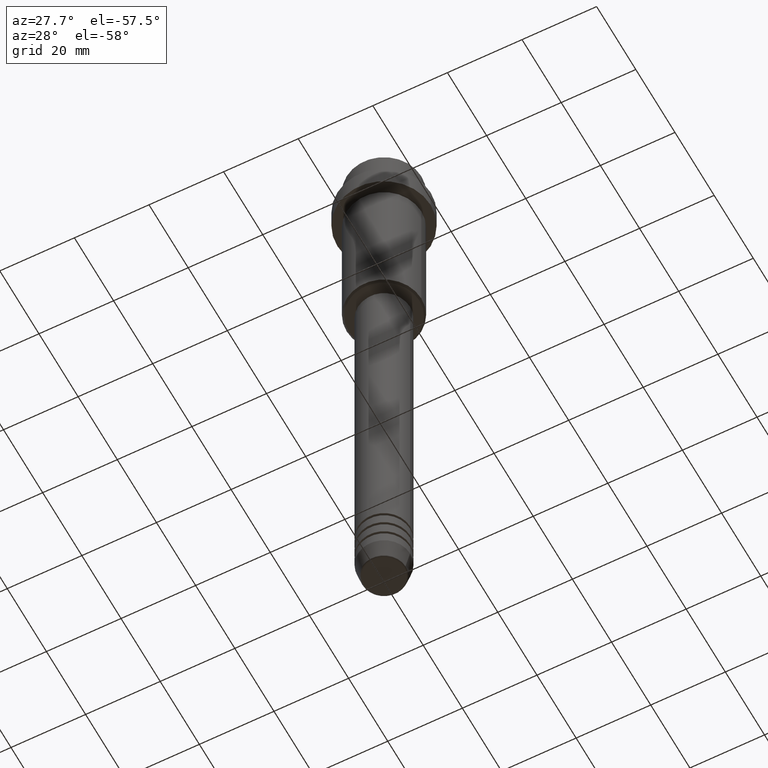
[diagram: clean part render]
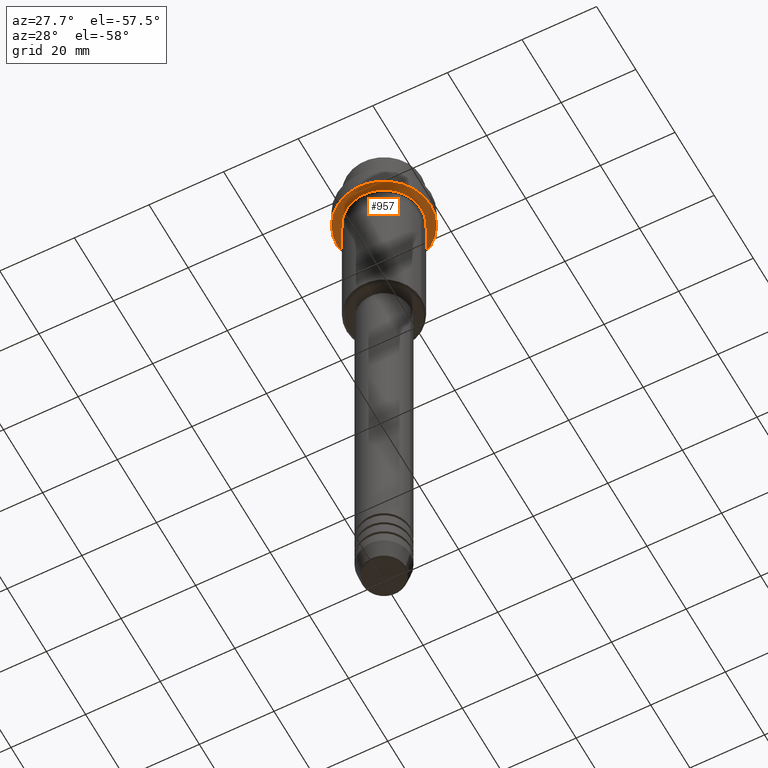
[diagram: same view with one face highlighted and labeled with its STEP entity id]
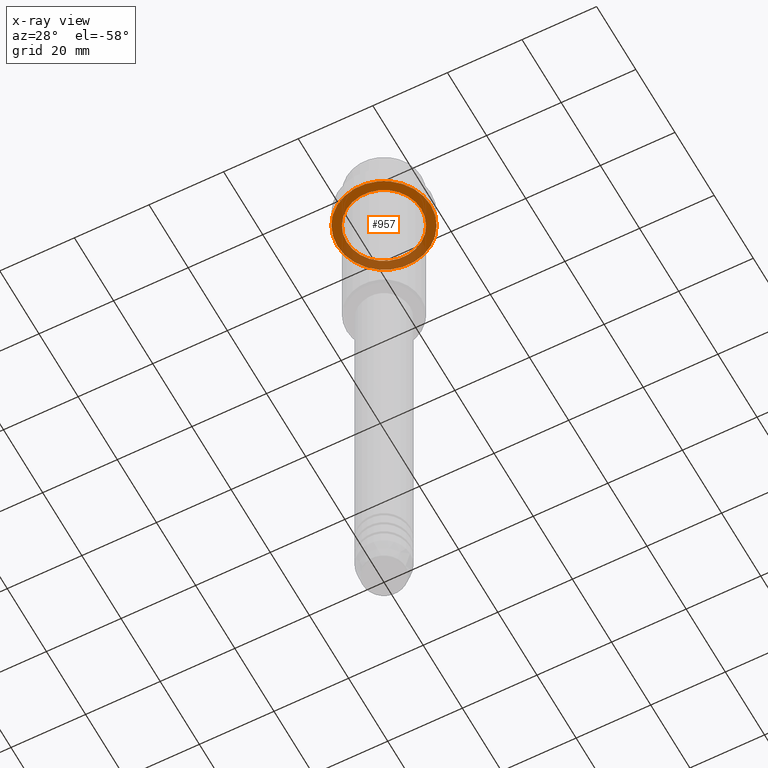
[diagram: x-ray of the same camera — body ghosted, the highlighted face saturated]
A machine part, auxiliary view. The second image highlights one B-rep face of the part: STEP entity #957.
The next image is the same camera in x-ray: the body ghosted, the highlighted face saturated — about 32% of this face is hidden behind the body in this view.
In plain terms, the highlighted planar face has unit normal (0, 0, -1).
Its self-contained STEP definition (entity closure, byte-faithful):
#38 = DIRECTION ( 'NONE',  ( -0.000000000000000000, -0.000000000000000000, 1.000000000000000000 ) ) ;
#71 = CARTESIAN_POINT ( 'NONE',  ( -9.999999999999994671, 0.000000000000000000, -15.00000000000000000 ) ) ;
#75 = EDGE_LOOP ( 'NONE', ( #508, #157 ) ) ;
#157 = ORIENTED_EDGE ( 'NONE', *, *, #277, .F. ) ;
#231 = DIRECTION ( 'NONE',  ( -0.000000000000000000, -0.000000000000000000, 1.000000000000000000 ) ) ;
#242 = EDGE_LOOP ( 'NONE', ( #1207, #872 ) ) ;
#272 = CARTESIAN_POINT ( 'NONE',  ( 0.000000000000000000, 0.000000000000000000, -15.00000000000000178 ) ) ;
#273 = CIRCLE ( 'NONE', #1251, 9.999999999999994671 ) ;
#276 = PLANE ( 'NONE',  #887 ) ;
#277 = EDGE_CURVE ( 'NONE', #761, #1139, #1314, .T. ) ;
#297 = CARTESIAN_POINT ( 'NONE',  ( 0.000000000000000000, 0.000000000000000000, -15.00000000000000000 ) ) ;
#315 = VERTEX_POINT ( 'NONE', #71 ) ;
#395 = EDGE_CURVE ( 'NONE', #315, #1182, #534, .T. ) ;
#422 = DIRECTION ( 'NONE',  ( -1.000000000000000000, 0.000000000000000000, 0.000000000000000000 ) ) ;
#454 = AXIS2_PLACEMENT_3D ( 'NONE', #272, #38, #475 ) ;
#469 = CARTESIAN_POINT ( 'NONE',  ( 0.000000000000000000, 12.50000000000000000, -15.00000000000000000 ) ) ;
#475 = DIRECTION ( 'NONE',  ( 1.000000000000000000, 0.000000000000000000, 0.000000000000000000 ) ) ;
#480 = DIRECTION ( 'NONE',  ( -0.000000000000000000, -0.000000000000000000, 1.000000000000000000 ) ) ;
#495 = DIRECTION ( 'NONE',  ( 0.000000000000000000, 0.000000000000000000, -1.000000000000000000 ) ) ;
#508 = ORIENTED_EDGE ( 'NONE', *, *, #1394, .F. ) ;
#534 = CIRCLE ( 'NONE', #1339, 9.999999999999994671 ) ;
#619 = CARTESIAN_POINT ( 'NONE',  ( 9.999999999999994671, 1.224646799147352665E-15, -15.00000000000000000 ) ) ;
#681 = EDGE_CURVE ( 'NONE', #1182, #315, #273, .T. ) ;
#705 = FACE_OUTER_BOUND ( 'NONE', #75, .T. ) ;
#761 = VERTEX_POINT ( 'NONE', #1163 ) ;
#763 = CARTESIAN_POINT ( 'NONE',  ( 0.000000000000000000, 0.000000000000000000, -15.00000000000000178 ) ) ;
#872 = ORIENTED_EDGE ( 'NONE', *, *, #681, .T. ) ;
#887 = AXIS2_PLACEMENT_3D ( 'NONE', #469, #495, #906 ) ;
#906 = DIRECTION ( 'NONE',  ( -1.000000000000000000, 0.000000000000000000, -0.000000000000000000 ) ) ;
#923 = DIRECTION ( 'NONE',  ( -1.000000000000000000, 0.000000000000000000, 0.000000000000000000 ) ) ;
#926 = FACE_BOUND ( 'NONE', #242, .T. ) ;
#953 = CIRCLE ( 'NONE', #454, 12.50000000000000000 ) ;
#957 = ADVANCED_FACE ( 'NONE', ( #926, #705 ), #276, .T. ) ;
#987 = DIRECTION ( 'NONE',  ( 1.000000000000000000, 0.000000000000000000, 0.000000000000000000 ) ) ;
#1061 = AXIS2_PLACEMENT_3D ( 'NONE', #763, #231, #987 ) ;
#1139 = VERTEX_POINT ( 'NONE', #1277 ) ;
#1163 = CARTESIAN_POINT ( 'NONE',  ( -12.50000000000000000, 1.530808498934191521E-15, -15.00000000000000178 ) ) ;
#1182 = VERTEX_POINT ( 'NONE', #619 ) ;
#1187 = DIRECTION ( 'NONE',  ( -0.000000000000000000, -0.000000000000000000, 1.000000000000000000 ) ) ;
#1207 = ORIENTED_EDGE ( 'NONE', *, *, #395, .T. ) ;
#1244 = CARTESIAN_POINT ( 'NONE',  ( 0.000000000000000000, 0.000000000000000000, -15.00000000000000000 ) ) ;
#1251 = AXIS2_PLACEMENT_3D ( 'NONE', #297, #1187, #422 ) ;
#1277 = CARTESIAN_POINT ( 'NONE',  ( 12.50000000000000000, 0.000000000000000000, -15.00000000000000178 ) ) ;
#1314 = CIRCLE ( 'NONE', #1061, 12.50000000000000000 ) ;
#1339 = AXIS2_PLACEMENT_3D ( 'NONE', #1244, #480, #923 ) ;
#1394 = EDGE_CURVE ( 'NONE', #1139, #761, #953, .T. ) ;